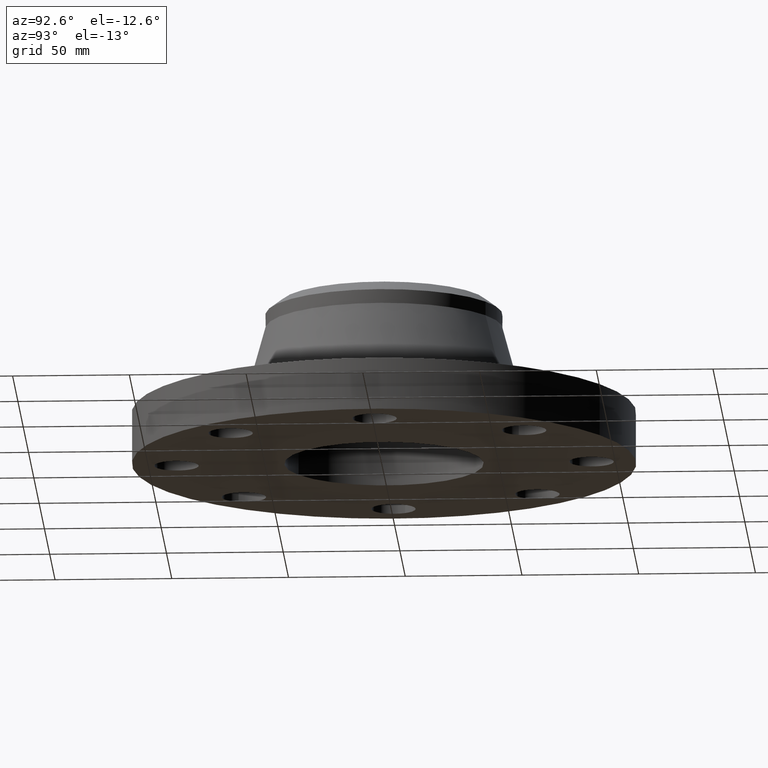
[diagram: clean part render]
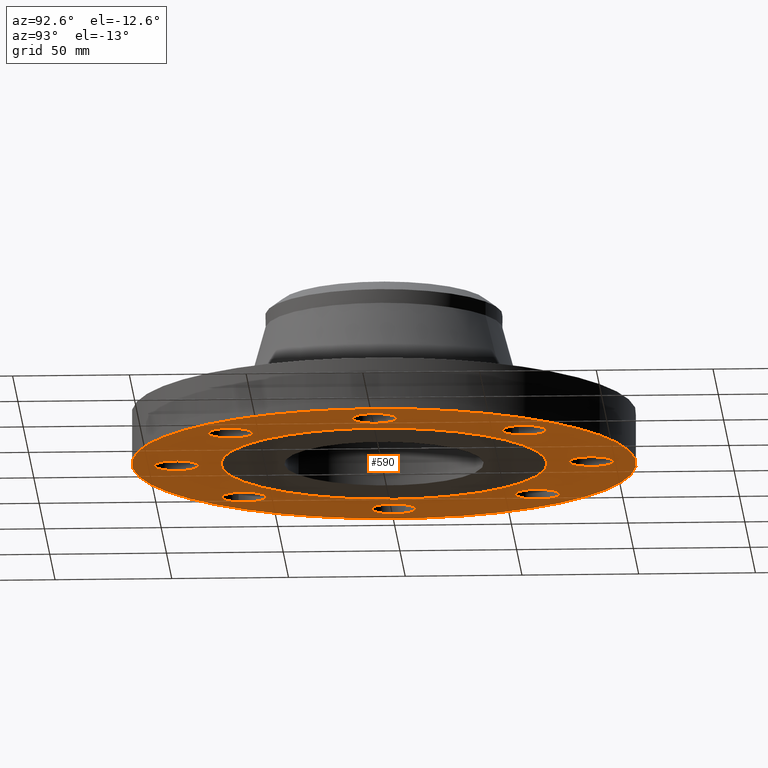
[diagram: same view with one face highlighted and labeled with its STEP entity id]
A machine part, auxiliary view. The second image highlights one B-rep face of the part: STEP entity #590.
In plain terms, the highlighted planar face has unit normal (0, 0, -1).
Its self-contained STEP definition (entity closure, byte-faithful):
#51=AXIS2_PLACEMENT_3D('Circle Axis2P3D',#49,#50,$) ;
#77=AXIS2_PLACEMENT_3D('Circle Axis2P3D',#75,#76,$) ;
#99=AXIS2_PLACEMENT_3D('Circle Axis2P3D',#97,#98,$) ;
#134=AXIS2_PLACEMENT_3D('Circle Axis2P3D',#132,#133,$) ;
#427=AXIS2_PLACEMENT_3D('Plane Axis2P3D',#424,#425,#426) ;
#431=AXIS2_PLACEMENT_3D('Circle Axis2P3D',#429,#430,$) ;
#440=AXIS2_PLACEMENT_3D('Circle Axis2P3D',#438,#439,$) ;
#466=AXIS2_PLACEMENT_3D('Circle Axis2P3D',#464,#465,$) ;
#475=AXIS2_PLACEMENT_3D('Circle Axis2P3D',#473,#474,$) ;
#484=AXIS2_PLACEMENT_3D('Circle Axis2P3D',#482,#483,$) ;
#493=AXIS2_PLACEMENT_3D('Circle Axis2P3D',#491,#492,$) ;
#502=AXIS2_PLACEMENT_3D('Circle Axis2P3D',#500,#501,$) ;
#511=AXIS2_PLACEMENT_3D('Circle Axis2P3D',#509,#510,$) ;
#520=AXIS2_PLACEMENT_3D('Circle Axis2P3D',#518,#519,$) ;
#529=AXIS2_PLACEMENT_3D('Circle Axis2P3D',#527,#528,$) ;
#538=AXIS2_PLACEMENT_3D('Circle Axis2P3D',#536,#537,$) ;
#547=AXIS2_PLACEMENT_3D('Circle Axis2P3D',#545,#546,$) ;
#556=AXIS2_PLACEMENT_3D('Circle Axis2P3D',#554,#555,$) ;
#565=AXIS2_PLACEMENT_3D('Circle Axis2P3D',#563,#564,$) ;
#574=AXIS2_PLACEMENT_3D('Circle Axis2P3D',#572,#573,$) ;
#583=AXIS2_PLACEMENT_3D('Circle Axis2P3D',#581,#582,$) ;
#44=CARTESIAN_POINT('Vertex',(3.1709065393,0.179784576977,0.)) ;
#49=CARTESIAN_POINT('Axis2P3D Location',(3.50000000001,0.,0.)) ;
#53=CARTESIAN_POINT('Vertex',(3.82909346072,-0.179784576977,0.)) ;
#75=CARTESIAN_POINT('Axis2P3D Location',(3.50000000001,0.,0.)) ;
#97=CARTESIAN_POINT('Axis2P3D Location',(0.,0.,5.59482469102E-016)) ;
#101=CARTESIAN_POINT('Vertex',(-2.03755853908,-3.72972588805,5.59482469102E-016)) ;
#103=CARTESIAN_POINT('Vertex',(2.03755853908,3.72972588805,5.59482469102E-016)) ;
#132=CARTESIAN_POINT('Axis2P3D Location',(0.,0.,5.59482469102E-016)) ;
#424=CARTESIAN_POINT('Axis2P3D Location',(0.,1.68200000001,0.)) ;
#429=CARTESIAN_POINT('Axis2P3D Location',(0.,0.,0.)) ;
#433=CARTESIAN_POINT('Vertex',(-1.31842023117,-2.41335204521,0.)) ;
#435=CARTESIAN_POINT('Vertex',(1.31842023117,2.41335204521,0.)) ;
#438=CARTESIAN_POINT('Axis2P3D Location',(0.,0.,0.)) ;
#464=CARTESIAN_POINT('Axis2P3D Location',(2.47487373416,-2.47487373416,0.)) ;
#468=CARTESIAN_POINT('Vertex',(2.36929640998,-2.11504262292,0.)) ;
#470=CARTESIAN_POINT('Vertex',(2.58045105834,-2.83470484541,0.)) ;
#473=CARTESIAN_POINT('Axis2P3D Location',(2.47487373416,-2.47487373416,0.)) ;
#482=CARTESIAN_POINT('Axis2P3D Location',(-2.79741234551E-016,-3.50000000001,0.)) ;
#486=CARTESIAN_POINT('Vertex',(0.179784576977,-3.1709065393,0.)) ;
#488=CARTESIAN_POINT('Vertex',(-0.179784576977,-3.82909346072,0.)) ;
#491=CARTESIAN_POINT('Axis2P3D Location',(-4.19611851827E-016,-3.50000000001,0.)) ;
#500=CARTESIAN_POINT('Axis2P3D Location',(-2.47487373416,-2.47487373416,0.)) ;
#504=CARTESIAN_POINT('Vertex',(-2.11504262292,-2.36929640998,0.)) ;
#506=CARTESIAN_POINT('Vertex',(-2.83470484541,-2.58045105834,0.)) ;
#509=CARTESIAN_POINT('Axis2P3D Location',(-2.47487373416,-2.47487373416,0.)) ;
#518=CARTESIAN_POINT('Axis2P3D Location',(-3.50000000001,-5.59482469102E-016,0.)) ;
#522=CARTESIAN_POINT('Vertex',(-3.1709065393,-0.179784576977,0.)) ;
#524=CARTESIAN_POINT('Vertex',(-3.82909346072,0.179784576977,0.)) ;
#527=CARTESIAN_POINT('Axis2P3D Location',(-3.50000000001,-5.59482469102E-016,0.)) ;
#536=CARTESIAN_POINT('Axis2P3D Location',(-2.47487373416,2.47487373416,0.)) ;
#540=CARTESIAN_POINT('Vertex',(-2.36929640998,2.11504262292,0.)) ;
#542=CARTESIAN_POINT('Vertex',(-2.58045105834,2.83470484541,0.)) ;
#545=CARTESIAN_POINT('Axis2P3D Location',(-2.47487373416,2.47487373416,0.)) ;
#554=CARTESIAN_POINT('Axis2P3D Location',(-7.69288395016E-016,3.50000000001,0.)) ;
#558=CARTESIAN_POINT('Vertex',(-0.179784576977,3.1709065393,0.)) ;
#560=CARTESIAN_POINT('Vertex',(0.179784576977,3.82909346072,0.)) ;
#563=CARTESIAN_POINT('Axis2P3D Location',(-5.59482469102E-016,3.50000000001,0.)) ;
#572=CARTESIAN_POINT('Axis2P3D Location',(2.47487373416,2.47487373416,0.)) ;
#576=CARTESIAN_POINT('Vertex',(2.11504262292,2.36929640998,0.)) ;
#578=CARTESIAN_POINT('Vertex',(2.83470484541,2.58045105834,0.)) ;
#581=CARTESIAN_POINT('Axis2P3D Location',(2.47487373416,2.47487373416,0.)) ;
#50=DIRECTION('Axis2P3D Direction',(0.,-0.,-0.0393700787402)) ;
#76=DIRECTION('Axis2P3D Direction',(0.,-0.,-0.0393700787402)) ;
#98=DIRECTION('Axis2P3D Direction',(0.,0.,-0.0393700787402)) ;
#133=DIRECTION('Axis2P3D Direction',(0.,0.,-0.0393700787402)) ;
#425=DIRECTION('Axis2P3D Direction',(0.,0.,-0.0393700787402)) ;
#426=DIRECTION('Axis2P3D XDirection',(0.0393700787402,0.,0.)) ;
#430=DIRECTION('Axis2P3D Direction',(0.,0.,-0.0393700787402)) ;
#439=DIRECTION('Axis2P3D Direction',(0.,0.,-0.0393700787402)) ;
#465=DIRECTION('Axis2P3D Direction',(0.,0.,-0.0393700787402)) ;
#474=DIRECTION('Axis2P3D Direction',(0.,0.,-0.0393700787402)) ;
#483=DIRECTION('Axis2P3D Direction',(0.,0.,-0.0393700787402)) ;
#492=DIRECTION('Axis2P3D Direction',(0.,0.,-0.0393700787402)) ;
#501=DIRECTION('Axis2P3D Direction',(0.,0.,-0.0393700787402)) ;
#510=DIRECTION('Axis2P3D Direction',(0.,0.,-0.0393700787402)) ;
#519=DIRECTION('Axis2P3D Direction',(0.,0.,-0.0393700787402)) ;
#528=DIRECTION('Axis2P3D Direction',(0.,0.,-0.0393700787402)) ;
#537=DIRECTION('Axis2P3D Direction',(0.,0.,-0.0393700787402)) ;
#546=DIRECTION('Axis2P3D Direction',(0.,0.,-0.0393700787402)) ;
#555=DIRECTION('Axis2P3D Direction',(0.,0.,-0.0393700787402)) ;
#564=DIRECTION('Axis2P3D Direction',(0.,0.,-0.0393700787402)) ;
#573=DIRECTION('Axis2P3D Direction',(0.,0.,-0.0393700787402)) ;
#582=DIRECTION('Axis2P3D Direction',(0.,0.,-0.0393700787402)) ;
#453=ORIENTED_EDGE('',*,*,#105,.T.) ;
#454=ORIENTED_EDGE('',*,*,#136,.T.) ;
#457=ORIENTED_EDGE('',*,*,#79,.F.) ;
#458=ORIENTED_EDGE('',*,*,#55,.F.) ;
#461=ORIENTED_EDGE('',*,*,#442,.F.) ;
#462=ORIENTED_EDGE('',*,*,#437,.F.) ;
#479=ORIENTED_EDGE('',*,*,#472,.F.) ;
#480=ORIENTED_EDGE('',*,*,#477,.F.) ;
#497=ORIENTED_EDGE('',*,*,#490,.F.) ;
#498=ORIENTED_EDGE('',*,*,#495,.F.) ;
#515=ORIENTED_EDGE('',*,*,#508,.F.) ;
#516=ORIENTED_EDGE('',*,*,#513,.F.) ;
#533=ORIENTED_EDGE('',*,*,#526,.F.) ;
#534=ORIENTED_EDGE('',*,*,#531,.F.) ;
#551=ORIENTED_EDGE('',*,*,#544,.F.) ;
#552=ORIENTED_EDGE('',*,*,#549,.F.) ;
#569=ORIENTED_EDGE('',*,*,#562,.F.) ;
#570=ORIENTED_EDGE('',*,*,#567,.F.) ;
#587=ORIENTED_EDGE('',*,*,#580,.F.) ;
#588=ORIENTED_EDGE('',*,*,#585,.F.) ;
#459=FACE_BOUND('',#456,.T.) ;
#463=FACE_BOUND('',#460,.T.) ;
#481=FACE_BOUND('',#478,.T.) ;
#499=FACE_BOUND('',#496,.T.) ;
#517=FACE_BOUND('',#514,.T.) ;
#535=FACE_BOUND('',#532,.T.) ;
#553=FACE_BOUND('',#550,.T.) ;
#571=FACE_BOUND('',#568,.T.) ;
#589=FACE_BOUND('',#586,.T.) ;
#590=ADVANCED_FACE('PartBody',(#455,#459,#463,#481,#499,#517,#535,#553,#571,#589),#428,.T.) ;
#52=CIRCLE('generated circle',#51,0.375000000002) ;
#78=CIRCLE('generated circle',#77,0.375000000002) ;
#100=CIRCLE('generated circle',#99,4.25000000002) ;
#135=CIRCLE('generated circle',#134,4.25000000002) ;
#432=CIRCLE('generated circle',#431,2.75000000001) ;
#441=CIRCLE('generated circle',#440,2.75000000001) ;
#467=CIRCLE('generated circle',#466,0.375000000002) ;
#476=CIRCLE('generated circle',#475,0.375000000002) ;
#485=CIRCLE('generated circle',#484,0.375000000002) ;
#494=CIRCLE('generated circle',#493,0.375000000002) ;
#503=CIRCLE('generated circle',#502,0.375000000002) ;
#512=CIRCLE('generated circle',#511,0.375000000002) ;
#521=CIRCLE('generated circle',#520,0.375000000001) ;
#530=CIRCLE('generated circle',#529,0.375000000001) ;
#539=CIRCLE('generated circle',#538,0.375000000002) ;
#548=CIRCLE('generated circle',#547,0.375000000002) ;
#557=CIRCLE('generated circle',#556,0.375000000002) ;
#566=CIRCLE('generated circle',#565,0.375000000002) ;
#575=CIRCLE('generated circle',#574,0.375000000002) ;
#584=CIRCLE('generated circle',#583,0.375000000002) ;
#55=EDGE_CURVE('',#45,#54,#52,.T.) ;
#79=EDGE_CURVE('',#54,#45,#78,.T.) ;
#105=EDGE_CURVE('',#102,#104,#100,.T.) ;
#136=EDGE_CURVE('',#104,#102,#135,.T.) ;
#437=EDGE_CURVE('',#434,#436,#432,.T.) ;
#442=EDGE_CURVE('',#436,#434,#441,.T.) ;
#472=EDGE_CURVE('',#469,#471,#467,.T.) ;
#477=EDGE_CURVE('',#471,#469,#476,.T.) ;
#490=EDGE_CURVE('',#487,#489,#485,.T.) ;
#495=EDGE_CURVE('',#489,#487,#494,.T.) ;
#508=EDGE_CURVE('',#505,#507,#503,.T.) ;
#513=EDGE_CURVE('',#507,#505,#512,.T.) ;
#526=EDGE_CURVE('',#523,#525,#521,.T.) ;
#531=EDGE_CURVE('',#525,#523,#530,.T.) ;
#544=EDGE_CURVE('',#541,#543,#539,.T.) ;
#549=EDGE_CURVE('',#543,#541,#548,.T.) ;
#562=EDGE_CURVE('',#559,#561,#557,.T.) ;
#567=EDGE_CURVE('',#561,#559,#566,.T.) ;
#580=EDGE_CURVE('',#577,#579,#575,.T.) ;
#585=EDGE_CURVE('',#579,#577,#584,.T.) ;
#452=EDGE_LOOP('',(#453,#454)) ;
#456=EDGE_LOOP('',(#457,#458)) ;
#460=EDGE_LOOP('',(#461,#462)) ;
#478=EDGE_LOOP('',(#479,#480)) ;
#496=EDGE_LOOP('',(#497,#498)) ;
#514=EDGE_LOOP('',(#515,#516)) ;
#532=EDGE_LOOP('',(#533,#534)) ;
#550=EDGE_LOOP('',(#551,#552)) ;
#568=EDGE_LOOP('',(#569,#570)) ;
#586=EDGE_LOOP('',(#587,#588)) ;
#455=FACE_OUTER_BOUND('',#452,.T.) ;
#428=PLANE('',#427) ;
#45=VERTEX_POINT('',#44) ;
#54=VERTEX_POINT('',#53) ;
#102=VERTEX_POINT('',#101) ;
#104=VERTEX_POINT('',#103) ;
#434=VERTEX_POINT('',#433) ;
#436=VERTEX_POINT('',#435) ;
#469=VERTEX_POINT('',#468) ;
#471=VERTEX_POINT('',#470) ;
#487=VERTEX_POINT('',#486) ;
#489=VERTEX_POINT('',#488) ;
#505=VERTEX_POINT('',#504) ;
#507=VERTEX_POINT('',#506) ;
#523=VERTEX_POINT('',#522) ;
#525=VERTEX_POINT('',#524) ;
#541=VERTEX_POINT('',#540) ;
#543=VERTEX_POINT('',#542) ;
#559=VERTEX_POINT('',#558) ;
#561=VERTEX_POINT('',#560) ;
#577=VERTEX_POINT('',#576) ;
#579=VERTEX_POINT('',#578) ;